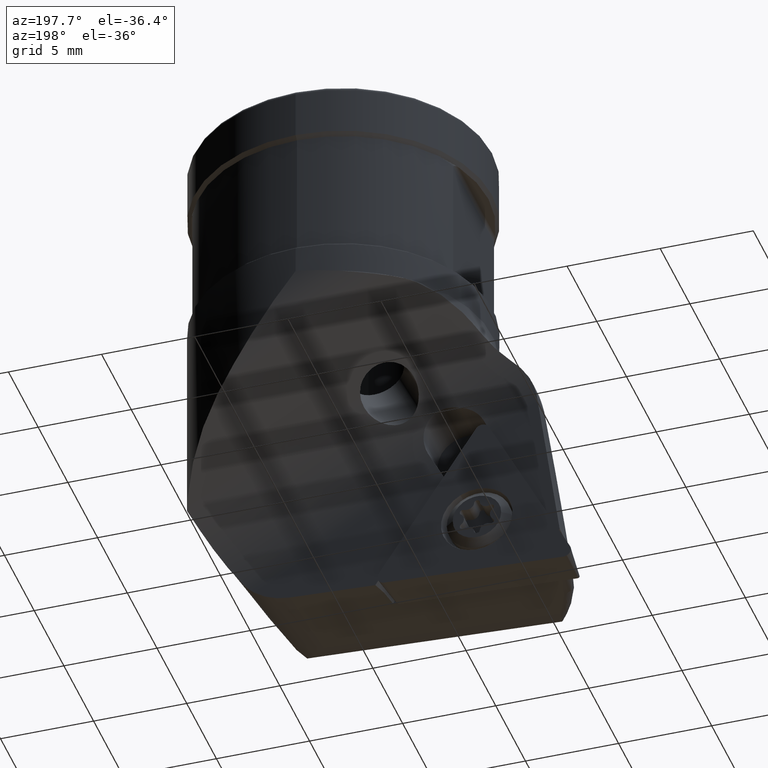
[diagram: clean part render]
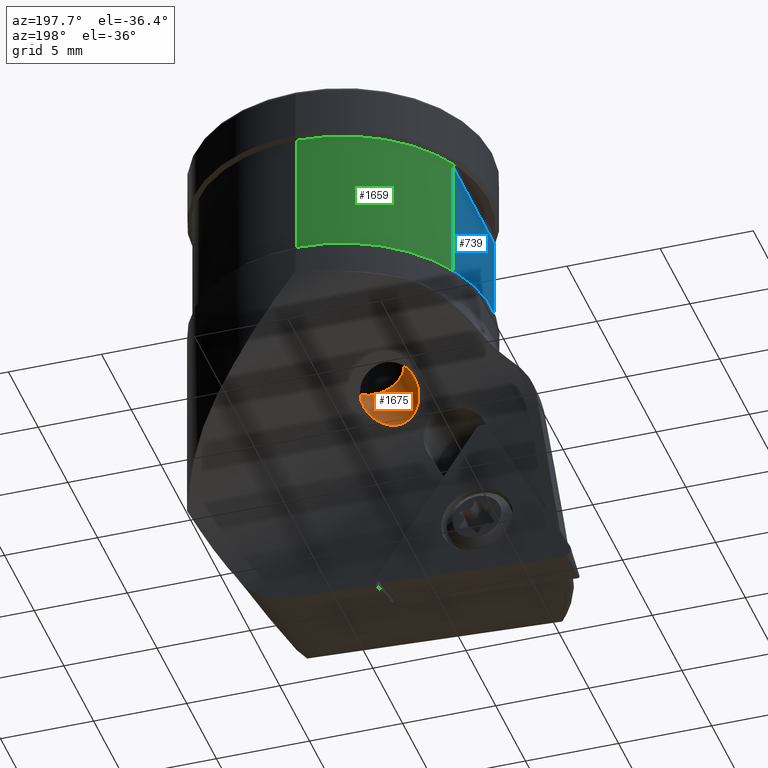
[diagram: same view with three faces highlighted in distinct colors, each labeled with its STEP entity id]
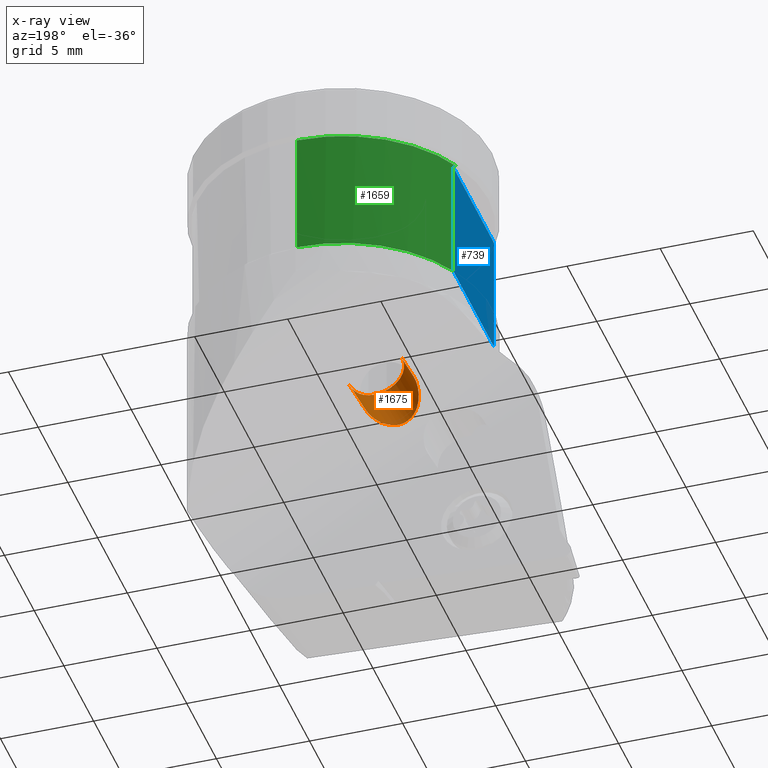
[diagram: x-ray of the same camera — body ghosted, the three highlighted faces saturated]
A machine part, auxiliary view with three faces highlighted in distinct colors.
The next image is the same camera in x-ray (body ghosted, the three faces saturated) — at least one of them is partly hidden behind the body in this view.
Their STEP definitions:

[orange] entity #1675 — the highlighted cylindrical surface (edge-blend (fillet) strip) has radius 1.5 mm, axis along (0.3971, -0.342, 0.8517).
#815=EDGE_CURVE('NONE',#1841,#1211,#2150,.T.);
#979=EDGE_CURVE('NONE',#1841,#1633,#2331,.T.);
#1021=VERTEX_POINT('NONE',#2376);
#1093=EDGE_CURVE('NONE',#1211,#1021,#2458,.T.);
#1153=EDGE_CURVE('NONE',#1633,#1021,#2524,.F.);
#1211=VERTEX_POINT('NONE',#2588);
#1633=VERTEX_POINT('NONE',#3057);
#1675=ADVANCED_FACE('NONE',(#3105),#3106,.F.);
#1841=VERTEX_POINT('NONE',#3287);
#2150=B_SPLINE_CURVE_WITH_KNOTS('',3,(#3667,#3668,#3669,#3670,#3671,#3672,#3673,#3674,#3675,#3676,#3677,#3678,#3679,#3680,#3681,#3682,#3683,#3684,#3685,#3686,#3687,#3688,#3689,#3690,#3691),.UNSPECIFIED.,.F.,.F.,(4,2,2,2,2,2,3,2,2,2,2,4),(7.066399445836,7.11469294464986,7.75842929753697,8.40216565042407,8.96514394264522,9.2466330887558,9.52812223486638,9.83171506586327,10.1353078968602,10.742493558854,11.3770689355936,11.9631451441812),.UNSPECIFIED.);
#2331=LINE('',#4481,#4482);
#2376=CARTESIAN_POINT('',(-3.5904719190605,1.35185080384469,-13.150489503573));
#2458=LINE('',#4744,#4745);
#2524=B_SPLINE_CURVE_WITH_KNOTS('',3,(#4888,#4889,#4890,#4891,#4892,#4893,#4894,#4895,#4896,#4897,#4898,#4899,#4900,#4901,#4902,#4903,#4904,#4905,#4906,#4907,#4908,#4909,#4910,#4911,#4912,#4913,#4914,#4915,#4916,#4917,#4918,#4919,#4920,#4921,#4922,#4923,#4924,#4925,#4926,#4927,#4928,#4929,#4930,#4931,#4932,#4933,#4934),.UNSPECIFIED.,.F.,.F.,(4,2,2,2,2,2,2,2,2,2,2,3,2,2,2,2,2,2,2,2,2,2,4),(-4.34877157732636,-3.95354304539109,-3.56816024573386,-3.18277744607663,-2.7938438579437,-2.40491026981076,-1.99718057530475,-1.58945088079873,-1.18067205461907,-0.771893228439412,-0.385946614219707,0.0,0.353934315441073,0.707868630882146,1.06180294632322,1.41573726176429,1.76789045165878,2.12004364155326,2.47219683144775,2.82435002134224,3.21803548101602,3.6117209406898,4.01141729801395),.UNSPECIFIED.);
#2588=CARTESIAN_POINT('',(-4.4553066019492,2.09666973532835,-15.0051334661432));
#3057=CARTESIAN_POINT('',(-0.695951405965036,1.20062180517636,-14.0417749811591));
#3105=FACE_OUTER_BOUND('',#6004,.T.);
#3106=CYLINDRICAL_SURFACE('',#6005,1.5);
#3287=CARTESIAN_POINT('',(-1.81934990019709,2.16812285786588,-16.4509108265298));
#3667=CARTESIAN_POINT('',(-1.81934990019709,2.16812285786588,-16.4509108265298));
#3668=CARTESIAN_POINT('',(-1.82398259783784,2.15608803124525,-16.460845678681));
#3669=CARTESIAN_POINT('',(-1.82881272762606,2.14415092124234,-16.4706671715002));
#3670=CARTESIAN_POINT('',(-1.90065784456576,1.97466245569143,-16.6096766710154));
#3671=CARTESIAN_POINT('',(-2.0119847656162,1.81400772540348,-16.7362519633659));
#3672=CARTESIAN_POINT('',(-2.30264538461082,1.53003341174149,-16.9455970626548));
#3673=CARTESIAN_POINT('',(-2.48167265082291,1.40635095811004,-17.0282998237775));
#3674=CARTESIAN_POINT('',(-2.83038174544238,1.22705803521743,-17.1180305139883));
#3675=CARTESIAN_POINT('',(-3.02041963220384,1.15407042745087,-17.138261752653));
#3676=CARTESIAN_POINT('',(-3.30580824668222,1.08126363443673,-17.1086171691267));
#3677=CARTESIAN_POINT('',(-3.40109444889877,1.06281427430958,-17.088957964559));
#3678=CARTESIAN_POINT('',(-3.58443290008523,1.03852759812737,-17.0299977514463));
#3679=CARTESIAN_POINT('',(-3.67247562265405,1.03269130408294,-16.9906667035199));
#3680=CARTESIAN_POINT('',(-3.7537345397945,1.03269130408294,-16.9437518458348));
#3681=CARTESIAN_POINT('',(-3.84137424114455,1.03269130408294,-16.8931530406686));
#3682=CARTESIAN_POINT('',(-3.92479673518549,1.03945118241123,-16.8316648364429));
#3683=CARTESIAN_POINT('',(-4.07739716540285,1.06651020740179,-16.6914068521017));
#3684=CARTESIAN_POINT('',(-4.1466093009127,1.0868050984806,-16.6126734642752));
#3685=CARTESIAN_POINT('',(-4.32863325361439,1.16581064132766,-16.3617328630601));
#3686=CARTESIAN_POINT('',(-4.41540928405294,1.24370925634121,-16.1742106020362));
#3687=CARTESIAN_POINT('',(-4.52544195190682,1.42572337120225,-15.8191138165939));
#3688=CARTESIAN_POINT('',(-4.5546765417019,1.54516266376379,-15.6243200939253));
#3689=CARTESIAN_POINT('',(-4.54564120927613,1.81003562661796,-15.2796950822696));
#3690=CARTESIAN_POINT('',(-4.5124297156425,1.95302176389246,-15.1276343787796));
#3691=CARTESIAN_POINT('',(-4.4553066019492,2.09666973532835,-15.0051334661432));
#4481=CARTESIAN_POINT('',(-0.178978024370172,0.755390399336351,-12.9331219866097));
#4482=VECTOR('',#7100,1000.0);
#4744=CARTESIAN_POINT('',(-2.89790138548012,0.755390399336351,-11.6652672013876));
#4745=VECTOR('',#7258,1000.0);
#4888=CARTESIAN_POINT('',(-2.43405271638635,2.72689609970438,-13.2164851177515));
#4889=CARTESIAN_POINT('',(-2.57104068961239,2.69738251919257,-13.1912969031319));
#4890=CARTESIAN_POINT('',(-2.70422878371576,2.64713536550256,-13.1702706005671));
#4891=CARTESIAN_POINT('',(-2.9318205673571,2.52487273311045,-13.1392894061526));
#4892=CARTESIAN_POINT('',(-3.04551871830886,2.44351712164458,-13.1265846214338));
#4893=CARTESIAN_POINT('',(-3.24411217239507,2.25042051744085,-13.110691430733));
#4894=CARTESIAN_POINT('',(-3.32899795449994,2.13867157435936,-13.1074806588036));
#4895=CARTESIAN_POINT('',(-3.45759028950974,1.91488622116209,-13.1090796876858));
#4896=CARTESIAN_POINT('',(-3.51170693733949,1.78410437192805,-13.1140950518625));
#4897=CARTESIAN_POINT('',(-3.58016009076414,1.51292329823929,-13.1331122104314));
#4898=CARTESIAN_POINT('',(-3.59456760432487,1.37254213552372,-13.1471158946775));
#4899=CARTESIAN_POINT('',(-3.58991697440644,1.10908417567965,-13.1800920834448));
#4900=CARTESIAN_POINT('',(-3.56882040198922,0.963718024823997,-13.2021836842092));
#4901=CARTESIAN_POINT('',(-3.48713205338826,0.685913401935637,-13.2541537957945));
#4902=CARTESIAN_POINT('',(-3.42660142765275,0.553466727577681,-13.2840845482061));
#4903=CARTESIAN_POINT('',(-3.28791922229665,0.327298397552177,-13.3448412177547));
#4904=CARTESIAN_POINT('',(-3.19777515749252,0.214198566654734,-13.3808626377694));
#4905=CARTESIAN_POINT('',(-2.99012491192469,0.0200050186274804,-13.4590603246955));
#4906=CARTESIAN_POINT('',(-2.8726154759723,-0.061040411034784,-13.5013478160686));
#4907=CARTESIAN_POINT('',(-2.64737399502431,-0.175174433699274,-13.5814490206613));
#4908=CARTESIAN_POINT('',(-2.52147345119133,-0.219752711139491,-13.6257496534515));
#4909=CARTESIAN_POINT('',(-2.26339339748334,-0.267038628254257,-13.7174587972366));
#4910=CARTESIAN_POINT('',(-2.13123488960245,-0.269634375339819,-13.7649840304334));
#4911=CARTESIAN_POINT('',(-2.01130052992403,-0.254460812673642,-13.8089845358705));
#4912=CARTESIAN_POINT('',(-1.90131411230389,-0.24054581946684,-13.8493354243022));
#4913=CARTESIAN_POINT('',(-1.7912387486352,-0.211153627237913,-13.8905186738151));
#4914=CARTESIAN_POINT('',(-1.58030052092865,-0.121899801534366,-13.9701155540222));
#4915=CARTESIAN_POINT('',(-1.479451491946,-0.0620469276772578,-14.0085756634765));
#4916=CARTESIAN_POINT('',(-1.293187239109,0.082208383657478,-14.0759866796278));
#4917=CARTESIAN_POINT('',(-1.20748815368303,0.166716585654568,-14.1049305025817));
#4918=CARTESIAN_POINT('',(-1.05345652555531,0.35119104106002,-14.1445860472437));
#4919=CARTESIAN_POINT('',(-0.984938870485351,0.45108327876941,-14.154921922264));
#4920=CARTESIAN_POINT('',(-0.867677448069251,0.655149787319796,-14.1534637917994));
#4921=CARTESIAN_POINT('',(-0.816183967742928,0.764000779059864,-14.1417505603857));
#4922=CARTESIAN_POINT('',(-0.735929692547358,0.988878048227419,-14.099836395257));
#4923=CARTESIAN_POINT('',(-0.707333120024383,1.10503220143857,-14.0700081845226));
#4924=CARTESIAN_POINT('',(-0.679244851690939,1.33781288643354,-14.0013717119511));
#4925=CARTESIAN_POINT('',(-0.679749422183638,1.45475839727921,-13.9625497721662));
#4926=CARTESIAN_POINT('',(-0.710356449314346,1.68143789583469,-13.8826084032899));
#4927=CARTESIAN_POINT('',(-0.740442315120012,1.7911561557712,-13.8414380346097));
#4928=CARTESIAN_POINT('',(-0.829692527395096,2.00705557677417,-13.7564074206687));
#4929=CARTESIAN_POINT('',(-0.897827868087874,2.12351488373074,-13.7078328572349));
#4930=CARTESIAN_POINT('',(-1.06692055875578,2.33134447950867,-13.6137861465391));
#4931=CARTESIAN_POINT('',(-1.16780986965211,2.42272419846629,-13.5682125465341));
#4932=CARTESIAN_POINT('',(-1.37430623988385,2.56681829101041,-13.4873697761449));
#4933=CARTESIAN_POINT('',(-1.49790830566126,2.63146059872822,-13.4452684704056));
#4934=CARTESIAN_POINT('',(-1.62902452942757,2.67708811614271,-13.4062740714706));
#6004=EDGE_LOOP('',(#8047,#8048,#8049,#8050));
#6005=AXIS2_PLACEMENT_3D('',#8051,#8052,#8053);
#7100=DIRECTION('',(0.397131261967104,-0.342020143325669,0.851650739639146));
#7258=DIRECTION('',(0.397131261967104,-0.342020143325669,0.851650739639146));
#8047=ORIENTED_EDGE('',*,*,#815,.T.);
#8048=ORIENTED_EDGE('',*,*,#1093,.T.);
#8049=ORIENTED_EDGE('',*,*,#1153,.F.);
#8050=ORIENTED_EDGE('',*,*,#979,.F.);
#8051=CARTESIAN_POINT('',(-1.53843970492514,0.755390399336351,-12.2991945939986));
#8052=DIRECTION('',(0.397131261967104,-0.342020143325669,0.851650739639146));
#8053=DIRECTION('',(0.90630778703665,0.0,-0.4226182617407));

[blue] entity #739 — the highlighted planar face has unit normal (1, 0, -0).
#739=ADVANCED_FACE('NONE',(#2070),#2071,.F.);
#1119=EDGE_CURVE('NONE',#1691,#1967,#2487,.T.);
#1137=VERTEX_POINT('NONE',#2506);
#1209=EDGE_CURVE('NONE',#1137,#1691,#2586,.T.);
#1399=VERTEX_POINT('NONE',#2801);
#1541=EDGE_CURVE('NONE',#1967,#1399,#2959,.T.);
#1691=VERTEX_POINT('NONE',#3123);
#1895=EDGE_CURVE('NONE',#1399,#1137,#3345,.T.);
#1967=VERTEX_POINT('NONE',#3424);
#2070=FACE_OUTER_BOUND('',#3553,.T.);
#2071=PLANE('',#3554);
#2487=LINE('',#4797,#4798);
#2506=CARTESIAN_POINT('',(-7.0,-3.44093010681705,-9.8));
#2586=LINE('',#5067,#5068);
#2801=CARTESIAN_POINT('',(-7.0,3.44093010681705,-9.8));
#2959=LINE('',#5708,#5709);
#3123=CARTESIAN_POINT('',(-7.0,-3.44093010681705,-3.2));
#3345=LINE('',#6560,#6561);
#3424=CARTESIAN_POINT('',(-7.0,3.44093010681705,-3.2));
#3553=EDGE_LOOP('',(#6805,#6806,#6807,#6808));
#3554=AXIS2_PLACEMENT_3D('',#6809,#6810,#6811);
#4797=CARTESIAN_POINT('',(-7.0,-8.18743202115563,-3.2));
#4798=VECTOR('',#7295,1.0);
#5067=CARTESIAN_POINT('',(-7.0,-3.44093010681705,1.02935986504359));
#5068=VECTOR('',#7408,1.0);
#5708=CARTESIAN_POINT('',(-7.0,3.44093010681705,1.02935986504359));
#5709=VECTOR('',#7883,1.0);
#6560=CARTESIAN_POINT('',(-7.0,0.0,-9.8));
#6561=VECTOR('',#8290,1.0);
#6805=ORIENTED_EDGE('',*,*,#1541,.T.);
#6806=ORIENTED_EDGE('',*,*,#1895,.T.);
#6807=ORIENTED_EDGE('',*,*,#1209,.T.);
#6808=ORIENTED_EDGE('',*,*,#1119,.T.);
#6809=CARTESIAN_POINT('',(-7.0,-8.18743202115563,-10.0));
#6810=DIRECTION('',(1.0,1.53533956025768E-032,-1.22464679914735E-016));
#6811=DIRECTION('',(-1.22464679914735E-016,-1.23908819712629E-016,-1.0));
#7295=DIRECTION('',(0.0,1.0,0.0));
#7408=DIRECTION('',(1.22464679914735E-016,-0.0,1.0));
#7883=DIRECTION('',(-1.22464679914735E-016,0.0,-1.0));
#8290=DIRECTION('',(0.0,-1.0,0.0));

[green] entity #1659 — the highlighted cylindrical surface (partial cylindrical patch) has radius 7.8 mm, axis along (0, 0, 1).
#745=VERTEX_POINT('',#2077);
#1111=EDGE_CURVE('NONE',#1967,#1969,#2478,.F.);
#1169=EDGE_CURVE('',#1213,#745,#2542,.T.);
#1213=VERTEX_POINT('NONE',#2590);
#1359=EDGE_CURVE('NONE',#1213,#1969,#2756,.T.);
#1399=VERTEX_POINT('NONE',#2801);
#1541=EDGE_CURVE('NONE',#1967,#1399,#2959,.T.);
#1659=ADVANCED_FACE('NONE',(#3087),#3088,.T.);
#1901=EDGE_CURVE('NONE',#745,#1399,#3351,.F.);
#1967=VERTEX_POINT('NONE',#3424);
#1969=VERTEX_POINT('NONE',#3426);
#2077=CARTESIAN_POINT('',(-2.15534681914586E-015,7.8,-9.8));
#2478=B_SPLINE_CURVE_WITH_KNOTS('',3,(#4772,#4773,#4774,#4775,#4776,#4777,#4778,#4779,#4780,#4781,#4782,#4783),.UNSPECIFIED.,.F.,.F.,(4,2,2,2,2,4),(1.75006829884936,1.94589747300514,2.14172664716093,2.21642074604959,2.25376779549393,2.29111484493826),.UNSPECIFIED.);
#2542=LINE('',#4958,#4959);
#2590=CARTESIAN_POINT('',(6.00076931582203E-016,7.8,-3.0));
#2756=CIRCLE('',#5342,7.8);
#2801=CARTESIAN_POINT('',(-7.0,3.44093010681705,-9.8));
#2959=LINE('',#5708,#5709);
#3087=FACE_OUTER_BOUND('',#5983,.T.);
#3088=CYLINDRICAL_SURFACE('',#5984,7.8);
#3351=CIRCLE('',#6569,7.8);
#3424=CARTESIAN_POINT('',(-7.0,3.44093010681705,-3.2));
#3426=CARTESIAN_POINT('',(-7.2,3.0,-3.0));
#4772=CARTESIAN_POINT('',(-7.2,3.0,-3.0));
#4773=CARTESIAN_POINT('',(-7.17489369562105,3.06025513050947,-3.0));
#4774=CARTESIAN_POINT('',(-7.14659084648904,3.12586465124319,-3.00478558843581));
#4775=CARTESIAN_POINT('',(-7.08999477462033,3.25219381923371,-3.03011751925779));
#4776=CARTESIAN_POINT('',(-7.06163898363443,3.31306285552056,-3.04977094944641));
#4777=CARTESIAN_POINT('',(-7.02830823461035,3.38280044003384,-3.09621615675855));
#4778=CARTESIAN_POINT('',(-7.01883649540954,3.40238084460928,-3.11271339065204));
#4779=CARTESIAN_POINT('',(-7.00821754490496,3.4241717438271,-3.14230005435668));
#4780=CARTESIAN_POINT('',(-7.00527061183731,3.43019026991279,-3.15295987953448));
#4781=CARTESIAN_POINT('',(-7.0011631005106,3.43856614317326,-3.17558679799283));
#4782=CARTESIAN_POINT('',(-7.0,3.44093010681705,-3.18755098351856));
#4783=CARTESIAN_POINT('',(-7.0,3.44093010681705,-3.2));
#4958=CARTESIAN_POINT('',(-1.7389452964639E-015,7.8,-6.39982353302294));
#4959=VECTOR('',#7364,1.0);
#5342=AXIS2_PLACEMENT_3D('',#7614,#7615,#7616);
#5708=CARTESIAN_POINT('',(-7.0,3.44093010681705,1.02935986504359));
#5709=VECTOR('',#7883,1.0);
#5983=EDGE_LOOP('',(#8021,#8022,#8023,#8024,#8025));
#5984=AXIS2_PLACEMENT_3D('',#8026,#8027,#8028);
#6569=AXIS2_PLACEMENT_3D('',#8294,#8295,#8296);
#7364=DIRECTION('',(-1.22464679914735E-016,0.0,-1.0));
#7614=CARTESIAN_POINT('',(-3.67394039744206E-016,0.0,-3.0));
#7615=DIRECTION('',(1.22464679914735E-016,0.0,1.0));
#7616=DIRECTION('',(0.0,-1.0,0.0));
#7883=DIRECTION('',(-1.22464679914735E-016,0.0,-1.0));
#8021=ORIENTED_EDGE('',*,*,#1169,.T.);
#8022=ORIENTED_EDGE('',*,*,#1901,.T.);
#8023=ORIENTED_EDGE('',*,*,#1541,.F.);
#8024=ORIENTED_EDGE('',*,*,#1111,.T.);
#8025=ORIENTED_EDGE('',*,*,#1359,.F.);
#8026=CARTESIAN_POINT('',(1.26060226389638E-016,0.0,1.02935986504359));
#8027=DIRECTION('',(1.22464679914735E-016,0.0,1.0));
#8028=DIRECTION('',(0.0,-1.0,0.0));
#8294=CARTESIAN_POINT('',(-1.20015386316441E-015,0.0,-9.8));
#8295=DIRECTION('',(-1.22464679914735E-016,-0.0,-1.0));
#8296=DIRECTION('',(0.0,-1.0,0.0));